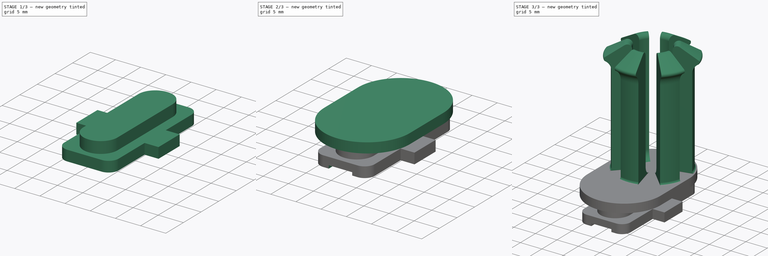
[diagram: build sequence overview — one tinted view per stage of 3, left to right]
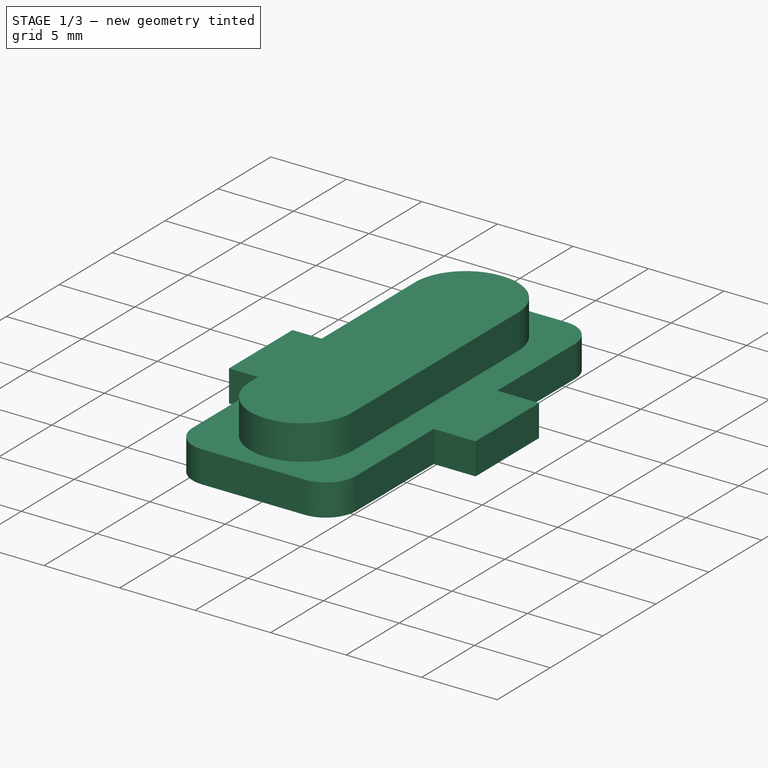
[diagram: stage 1 of 3 — iso view after this stage's code; geometry added in this stage tinted green]
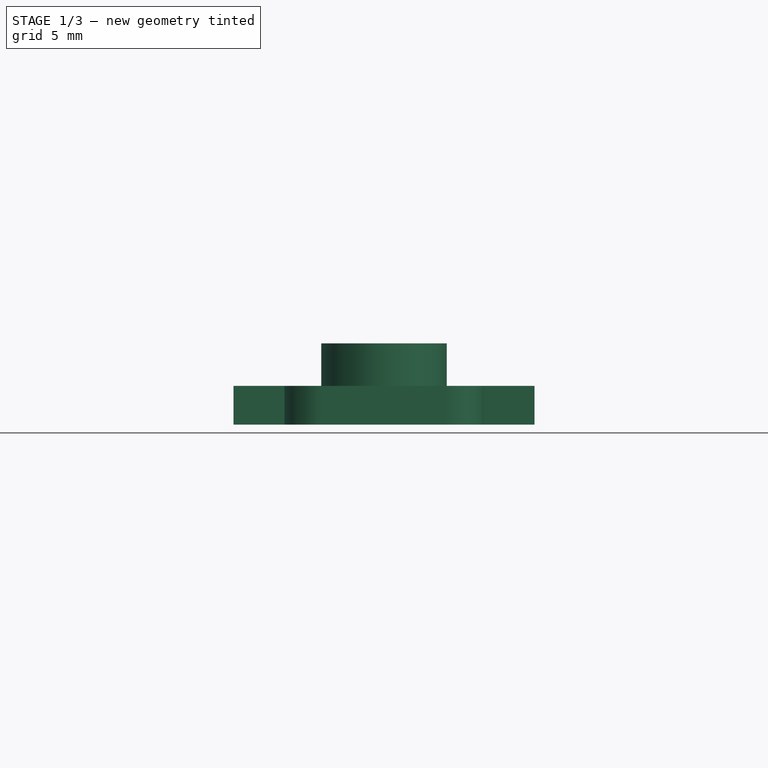
[diagram: stage 1 of 3 — front view after this stage's code; geometry added in this stage tinted green]
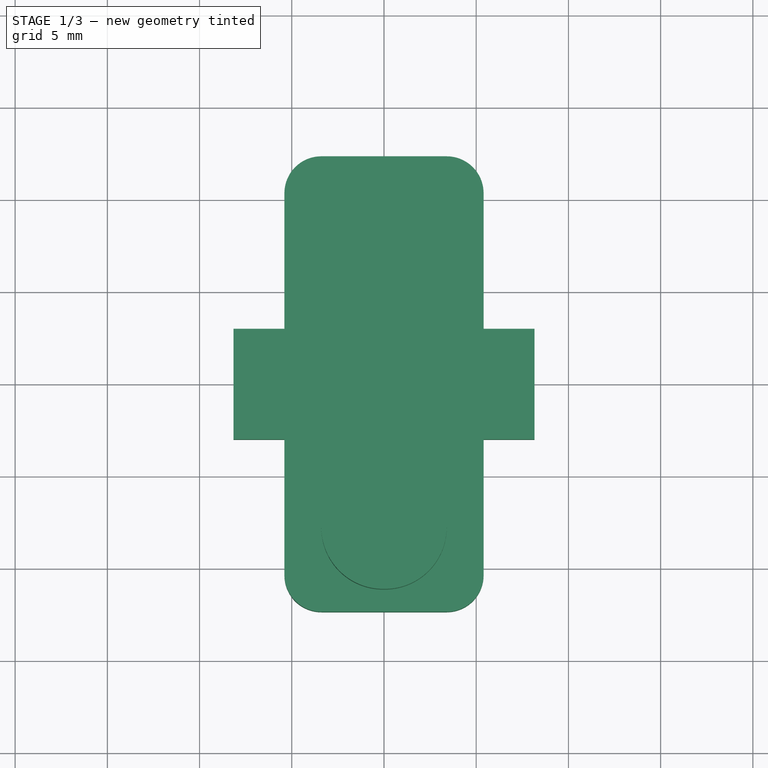
[diagram: stage 1 of 3 — top view after this stage's code; geometry added in this stage tinted green]
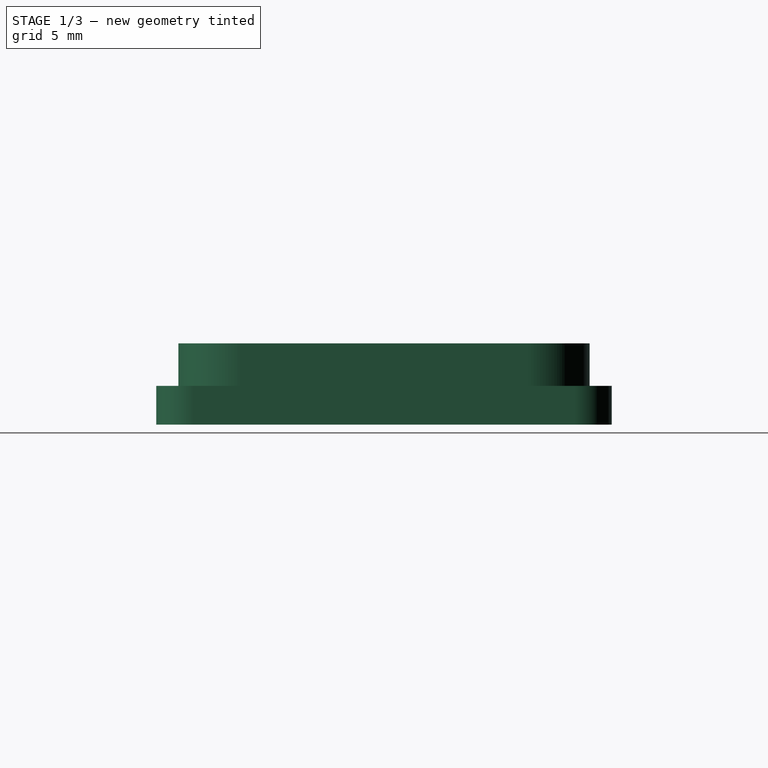
[diagram: stage 1 of 3 — right view after this stage's code; geometry added in this stage tinted green]
FCSTD DOCUMENT  (FreeCAD 1.0R39109 (Git))
Label: shower brush hook
License: All rights reserved
objects: Sketcher::SketchObject×5, PartDesign::Pad×3, PartDesign::Pocket×1, PartDesign::Line×1, PartDesign::Revolution×1, PartDesign::PolarPattern×1, PartDesign::Body×1
note: 29 computed .brp shape members not serialized (recipe doc carries the construction recipe); baked Part::Feature solids carry a one-line shape summary decoded from their .brp

FEATURE [Sketcher::SketchObject] Sketch
  ArcFitTolerance = 1e-06
  AttachmentSupport = -> [XY_Plane]
  FullyConstrained = true
  MakeInternals = false
  MapMode = 5
  sketch-geometry (28):
    g0: LineSegment [constr] StartX=-5.4 StartY=12.35 StartZ=0 EndX=-5.4 EndY=-12.35 EndZ=0
    g1: LineSegment [constr] StartX=-5.4 StartY=-12.35 StartZ=0 EndX=5.4 EndY=-12.35 EndZ=0
    g2: LineSegment [constr] StartX=5.4 StartY=-12.35 StartZ=0 EndX=5.4 EndY=12.35 EndZ=0
    g3: LineSegment [constr] StartX=5.4 StartY=12.35 StartZ=0 EndX=-5.4 EndY=12.35 EndZ=0
    g4: LineSegment [constr] StartX=-8.16 StartY=3 StartZ=0 EndX=-8.16 EndY=-3 EndZ=0
    g5: LineSegment [constr] StartX=-8.16 StartY=-3 StartZ=0 EndX=8.16 EndY=-3 EndZ=0
    g6: LineSegment [constr] StartX=8.16 StartY=-3 StartZ=0 EndX=8.16 EndY=3 EndZ=0
    g7: LineSegment [constr] StartX=8.16 StartY=3 StartZ=0 EndX=-8.16 EndY=3 EndZ=0
    g8: LineSegment StartX=-8.16 StartY=3 StartZ=0 EndX=-8.16 EndY=-3 EndZ=0
    g9: LineSegment StartX=-8.16 StartY=-3 StartZ=0 EndX=-5.4 EndY=-3 EndZ=0
    g10: LineSegment StartX=-5.4 StartY=-3 StartZ=0 EndX=-5.4 EndY=-10.35 EndZ=0
    g11: LineSegment StartX=-3.4 StartY=-12.35 StartZ=0 EndX=3.4 EndY=-12.35 EndZ=0
    g12: LineSegment StartX=5.4 StartY=-10.35 StartZ=0 EndX=5.4 EndY=-3 EndZ=0
    g13: LineSegment StartX=5.4 StartY=-3 StartZ=0 EndX=8.16 EndY=-3 EndZ=0
    g14: LineSegment StartX=8.16 StartY=-3 StartZ=0 EndX=8.16 EndY=3 EndZ=0
    g15: LineSegment StartX=8.16 StartY=3 StartZ=0 EndX=5.4 EndY=3 EndZ=0
    g16: LineSegment StartX=5.4 StartY=3 StartZ=0 EndX=5.4 EndY=10.35 EndZ=0
    g17: LineSegment StartX=3.4 StartY=12.35 StartZ=0 EndX=-3.4 EndY=12.35 EndZ=0
    g18: LineSegment StartX=-5.4 StartY=10.35 StartZ=0 EndX=-5.4 EndY=3 EndZ=0
    g19: LineSegment StartX=-5.4 StartY=3 StartZ=0 EndX=-8.16 EndY=3 EndZ=0
    g20: ArcOfCircle CenterX=-3.4 CenterY=10.35 CenterZ=0 NormalX=0 NormalY=0 NormalZ=1 AngleXU=0 Radius=2 StartAngle=1.5708 EndAngle=3.14159
    g21: GeomPoint [constr] X=-5.4 Y=12.35 Z=0
    g22: ArcOfCircle CenterX=3.4 CenterY=10.35 CenterZ=0 NormalX=0 NormalY=0 NormalZ=1 AngleXU=0 Radius=2 StartAngle=3e-16 EndAngle=1.5708
    g23: GeomPoint [constr] X=5.4 Y=12.35 Z=0
    g24: ArcOfCircle CenterX=-3.4 CenterY=-10.35 CenterZ=0 NormalX=0 NormalY=0 NormalZ=1 AngleXU=0 Radius=2 StartAngle=3.14159 EndAngle=4.71239
    g25: GeomPoint [constr] X=-5.4 Y=-12.35 Z=0
    g26: ArcOfCircle CenterX=3.4 CenterY=-10.35 CenterZ=0 NormalX=0 NormalY=0 NormalZ=1 AngleXU=0 Radius=2 StartAngle=4.71239 EndAngle=6.28319
    g27: GeomPoint [constr] X=5.4 Y=-12.35 Z=0
  constraints (64):
    c: Coincident(g0,g1)
    c: Coincident(g1,g2)
    c: Coincident(g2,g3)
    c: Coincident(g3,g0)
    c: Vertical(g0)
    c: Horizontal(g1)
    c: DistanceY(g2,g2) = 24.7
    c: Symmetric(g2,g1,g-1)
    c: Symmetric(g0,g2,g-2)
    c: DistanceX(g3,g3) = 10.8
    c: Coincident(g4,g5)
    c: Coincident(g5,g6)
    c: Coincident(g6,g7)
    c: Coincident(g7,g4)
    c: Vertical(g4)
    c: Horizontal(g5)
    c: Symmetric(g4,g6,g-2)
    c: Symmetric(g5,g6,g-1)
    c: Distance(g5,g5) = 16.32
    c: DistanceY(g6,g6) = 6
    c: Coincident(g8,g9)
    c: Coincident(g9,g10)
    c: Coincident(g12,g13)
    c: Coincident(g13,g14)
    c: Coincident(g14,g15)
    c: Coincident(g15,g16)
    c: Coincident(g18,g19)
    c: Coincident(g19,g8)
    c: Coincident(g8,g4)
    c: PointOnObject(g18,g0)
    c: PointOnObject(g18,g7)
    c: Coincident(g21,g0)
    c: Coincident(g23,g2)
    c: PointOnObject(g15,g2)
    c: PointOnObject(g15,g7)
    c: Coincident(g14,g6)
    c: Coincident(g13,g5)
    c: PointOnObject(g12,g5)
    c: PointOnObject(g12,g2)
    c: Coincident(g27,g1)
    c: Coincident(g25,g0)
    c: PointOnObject(g9,g0)
    c: PointOnObject(g9,g5)
    c: Coincident(g8,g4)
    c: PointOnObject(g21,g17)
    c: PointOnObject(g21,g18)
    c: Tangent(g17,g20) = -1.5708
    c: Tangent(g18,g20) = -1.5708
    c: PointOnObject(g23,g17)
    c: PointOnObject(g23,g16)
    c: Tangent(g17,g22) = -1.5708
    c: Tangent(g16,g22) = -1.5708
    c: PointOnObject(g25,g10)
    c: PointOnObject(g25,g11)
    c: Tangent(g10,g24) = -1.5708
    c: Tangent(g11,g24) = -1.5708
    c: PointOnObject(g27,g11)
    c: PointOnObject(g27,g12)
    c: Tangent(g11,g26) = -1.5708
    c: Tangent(g12,g26) = -1.5708
    c: Equal(g20,g22)
    c: Equal(g22,g24)
    c: Equal(g24,g26)
    c: Radius(g20) = 2
FEATURE [PartDesign::Pad] Pad
  Direction = (0,0,1)
  Length = 2.1
  Length2 = 10
  Profile = -> Sketch
  ReferenceAxis = -> Sketch [N_Axis]
  Suppressed = false
  Type = 0
FEATURE [Sketcher::SketchObject] Sketch001
  ArcFitTolerance = 1e-06
  AttachmentSupport = -> [Pad]
  FullyConstrained = true
  MakeInternals = false
  MapMode = 5
  Placement = pos=(0,0,2.1) rot=(0,0,1;0rad)
  sketch-geometry (12):
    g0: LineSegment StartX=-3.4 StartY=7.8 StartZ=0 EndX=-3.4 EndY=-7.8 EndZ=0
    g1: LineSegment StartX=-0.05 StartY=-11.15 StartZ=0 EndX=0.05 EndY=-11.15 EndZ=0
    g2: LineSegment StartX=3.4 StartY=-7.8 StartZ=0 EndX=3.4 EndY=7.8 EndZ=0
    g3: LineSegment StartX=0.05 StartY=11.15 StartZ=0 EndX=-0.05 EndY=11.15 EndZ=0
    g4: ArcOfCircle CenterX=0.05 CenterY=7.8 CenterZ=0 NormalX=0 NormalY=0 NormalZ=1 AngleXU=0 Radius=3.35 StartAngle=0 EndAngle=1.5708
    g5: GeomPoint [constr] X=3.4 Y=11.15 Z=0
    g6: ArcOfCircle CenterX=-0.05 CenterY=7.8 CenterZ=0 NormalX=0 NormalY=0 NormalZ=1 AngleXU=0 Radius=3.35 StartAngle=1.5708 EndAngle=3.14159
    g7: GeomPoint [constr] X=-3.4 Y=11.15 Z=0
    g8: ArcOfCircle CenterX=-0.05 CenterY=-7.8 CenterZ=0 NormalX=0 NormalY=0 NormalZ=1 AngleXU=0 Radius=3.35 StartAngle=3.14159 EndAngle=4.71239
    g9: GeomPoint [constr] X=-3.4 Y=-11.15 Z=0
    g10: ArcOfCircle CenterX=0.05 CenterY=-7.8 CenterZ=0 NormalX=0 NormalY=0 NormalZ=1 AngleXU=0 Radius=3.35 StartAngle=4.71239 EndAngle=6.28319
    g11: GeomPoint [constr] X=3.4 Y=-11.15 Z=0
  constraints (26):
    c: Vertical(g0)
    c: Horizontal(g3)
    c: Symmetric(g11,g5,g-1)
    c: Symmetric(g11,g9,g-2)
    c: Distance(g9,g11) = 6.8
    c: DistanceY(g11,g5) = 22.3
    c: PointOnObject(g5,g3)
    c: PointOnObject(g5,g2)
    c: Tangent(g3,g4) = -1.5708
    c: Tangent(g2,g4) = -1.5708
    c: PointOnObject(g7,g3)
    c: PointOnObject(g7,g0)
    c: Tangent(g3,g6) = -1.5708
    c: Tangent(g0,g6) = -1.5708
    c: PointOnObject(g9,g0)
    c: PointOnObject(g9,g1)
    c: Tangent(g0,g8) = -1.5708
    c: Tangent(g1,g8) = -1.5708
    c: PointOnObject(g11,g2)
    c: PointOnObject(g11,g1)
    c: Tangent(g2,g10) = -1.5708
    c: Tangent(g1,g10) = -1.5708
    c: Equal(g6,g4)
    c: Equal(g4,g8)
    c: Equal(g8,g10)
    c: Distance(g3,g3) = 0.1
FEATURE [PartDesign::Pad] Pad001
  BaseFeature = -> Pad
  Direction = (0,0,1)
  Length = 2.3
  Length2 = 10
  Profile = -> Sketch001
  ReferenceAxis = -> Sketch001 [N_Axis]
  Suppressed = false
  Type = 0
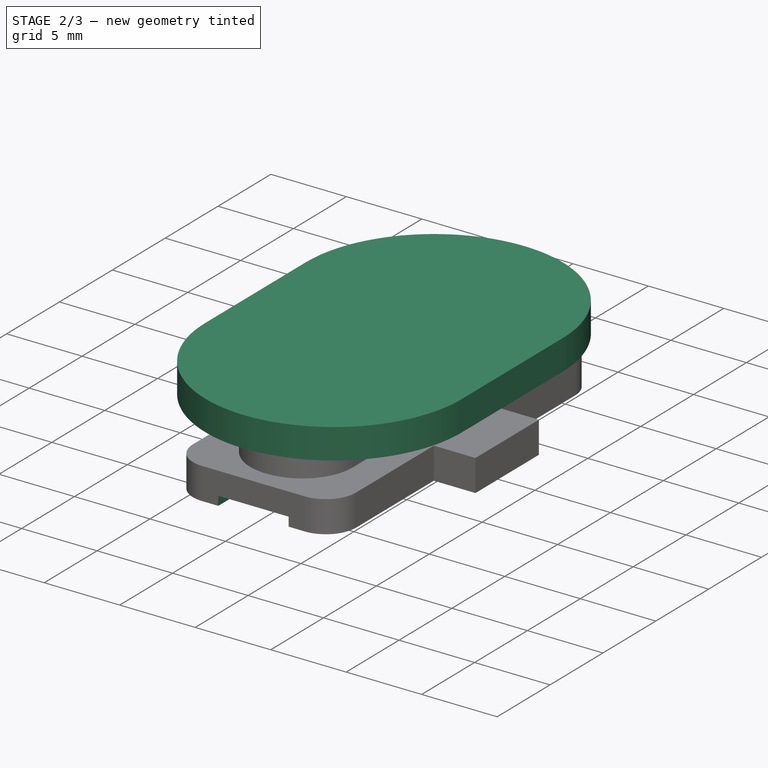
[diagram: stage 2 of 3 — iso view after this stage's code; geometry added in this stage tinted green]
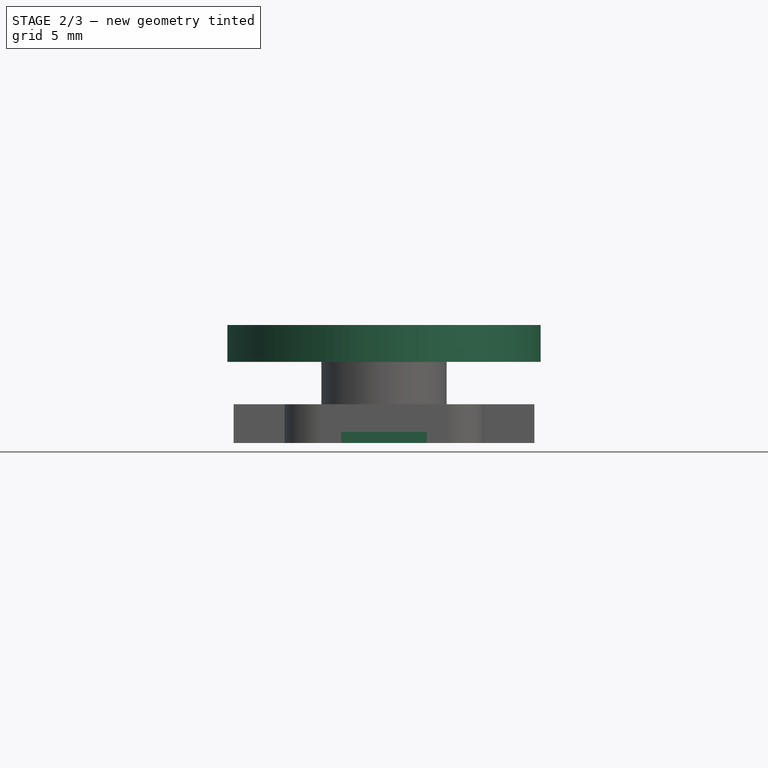
[diagram: stage 2 of 3 — front view after this stage's code; geometry added in this stage tinted green]
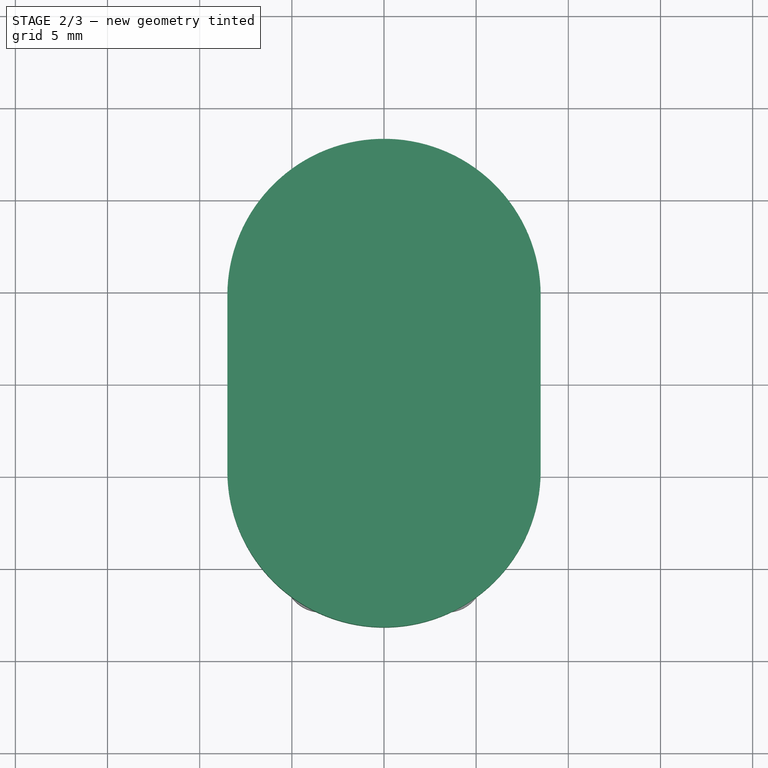
[diagram: stage 2 of 3 — top view after this stage's code; geometry added in this stage tinted green]
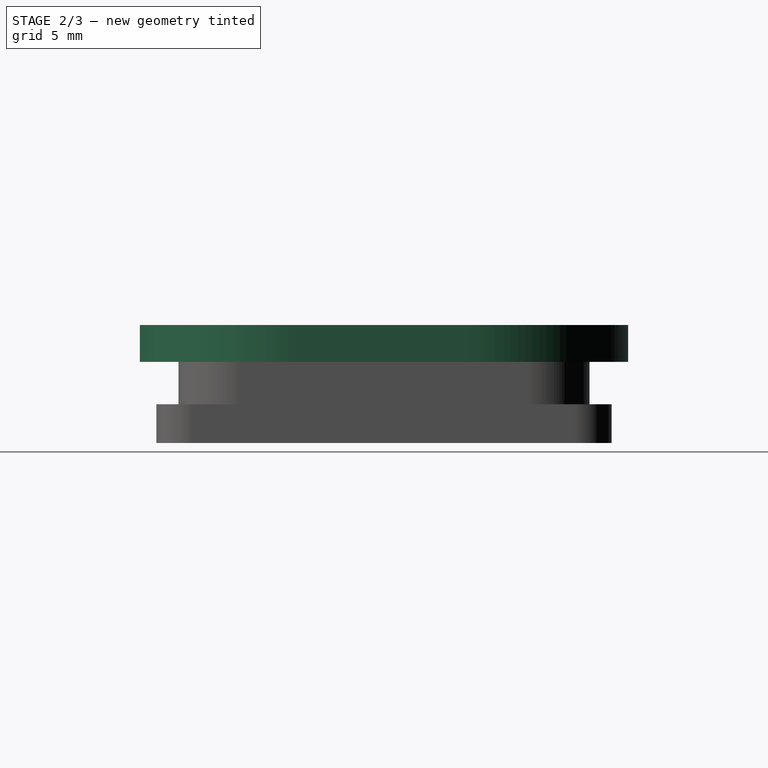
[diagram: stage 2 of 3 — right view after this stage's code; geometry added in this stage tinted green]
FEATURE [Sketcher::SketchObject] Sketch002
  ArcFitTolerance = 1e-06
  AttachmentSupport = -> [Pad001]
  ExternalGeometry = -> [Sketch]
  FullyConstrained = false
  MakeInternals = false
  MapMode = 5
  Placement = pos=(0,0,0) rot=(1,0,0;3.14159rad)
  sketch-geometry (8):
    g0: LineSegment StartX=-2.32943 StartY=12.35 StartZ=0 EndX=-2.32943 EndY=11 EndZ=0
    g1: LineSegment StartX=-2.32943 StartY=11 StartZ=0 EndX=2.32943 EndY=11 EndZ=0
    g2: LineSegment StartX=2.32943 StartY=11 StartZ=0 EndX=2.32943 EndY=12.35 EndZ=0
    g3: LineSegment StartX=2.32943 StartY=12.35 StartZ=0 EndX=-2.32943 EndY=12.35 EndZ=0
    g4: LineSegment StartX=-2.32943 StartY=-11 StartZ=0 EndX=-2.32943 EndY=-12.35 EndZ=0
    g5: LineSegment StartX=-2.32943 StartY=-12.35 StartZ=0 EndX=2.32943 EndY=-12.35 EndZ=0
    g6: LineSegment StartX=2.32943 StartY=-12.35 StartZ=0 EndX=2.32943 EndY=-11 EndZ=0
    g7: LineSegment StartX=2.32943 StartY=-11 StartZ=0 EndX=-2.32943 EndY=-11 EndZ=0
  constraints (21):
    c: Coincident(g0,g1)
    c: Coincident(g1,g2)
    c: Coincident(g2,g3)
    c: Coincident(g3,g0)
    c: Vertical(g0)
    c: Vertical(g2)
    c: PointOnObject(g0,g-3)
    c: PointOnObject(g2,g-3)
    c: Symmetric(g0,g1,g-2)
    c: Coincident(g4,g5)
    c: Coincident(g5,g6)
    c: Coincident(g6,g7)
    c: Coincident(g7,g4)
    c: Vertical(g4)
    c: Vertical(g6)
    c: Symmetric(g4,g6,g-2)
    c: PointOnObject(g4,g-4)
    c: PointOnObject(g5,g-4)
    c: Equal(g1,g7)
    c: Equal(g0,g4)
    c: DistanceY(g6,g1) = 22
FEATURE [PartDesign::Pocket] Pocket
  BaseFeature = -> Pad001
  Direction = (0,0,1)
  Length = 0.6
  Length2 = 5
  Profile = -> Sketch002
  ReferenceAxis = -> Sketch002 [N_Axis]
  Suppressed = false
  Type = 0
FEATURE [Sketcher::SketchObject] Sketch003
  ArcFitTolerance = 1e-06
  AttachmentSupport = -> [Pocket]
  FullyConstrained = true
  MakeInternals = false
  MapMode = 5
  Placement = pos=(0,0,4.4) rot=(0,0,1;0rad)
  sketch-geometry (6):
    g0: ArcOfCircle CenterX=0 CenterY=4.75 CenterZ=0 NormalX=0 NormalY=0 NormalZ=1 AngleXU=0 Radius=8.5 StartAngle=2e-16 EndAngle=3.14159
    g1: ArcOfCircle CenterX=0 CenterY=-4.75 CenterZ=0 NormalX=0 NormalY=0 NormalZ=1 AngleXU=0 Radius=8.5 StartAngle=3.14159 EndAngle=6.28319
    g2: LineSegment StartX=8.5 StartY=4.75 StartZ=0 EndX=8.5 EndY=-4.75 EndZ=0
    g3: LineSegment StartX=-8.5 StartY=4.75 StartZ=0 EndX=-8.5 EndY=-4.75 EndZ=0
    g4: GeomPoint X=0 Y=13.25 Z=0
    g5: GeomPoint X=0 Y=-13.25 Z=0
  constraints (13):
    c: Tangent(g0,g2) = 1.5708
    c: Tangent(g0,g3) = -1.5708
    c: Tangent(g1,g2) = 1.5708
    c: Tangent(g1,g3) = -1.5708
    c: Equal(g0,g1)
    c: PointOnObject(g0,g-2)
    c: Symmetric(g0,g1,g-1)
    c: Radius(g0) = 8.5
    c: PointOnObject(g4,g0)
    c: PointOnObject(g5,g1)
    c: PointOnObject(g4,g-2)
    c: PointOnObject(g5,g-2)
    c: DistanceY(g5,g4) = 26.5
FEATURE [PartDesign::Pad] Pad002
  BaseFeature = -> Pocket
  Direction = (0,0,1)
  Length = 2
  Length2 = 10
  Profile = -> Sketch003
  ReferenceAxis = -> Sketch003 [N_Axis]
  Suppressed = false
  Type = 0
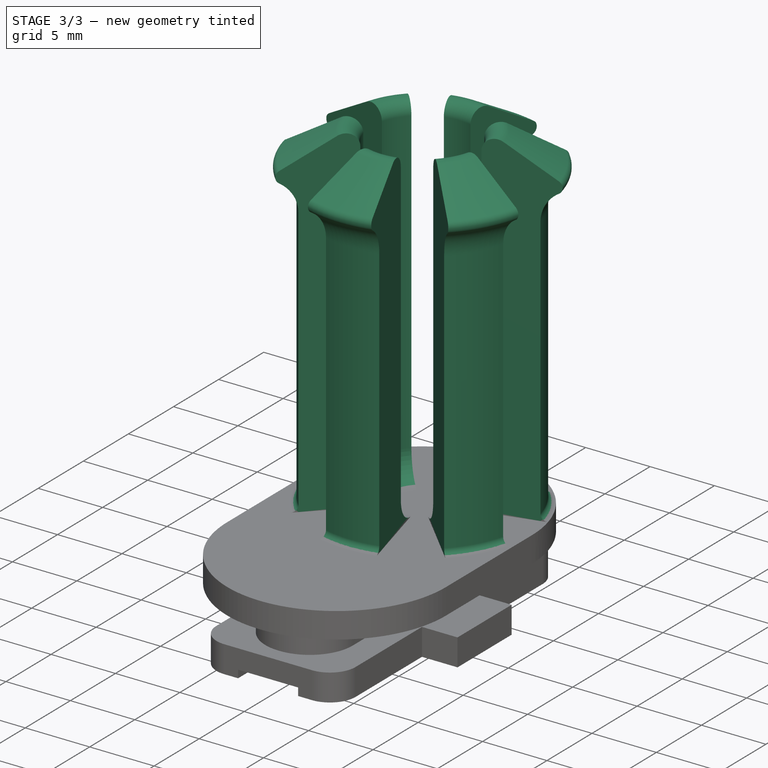
[diagram: stage 3 of 3 — iso view after this stage's code; geometry added in this stage tinted green]
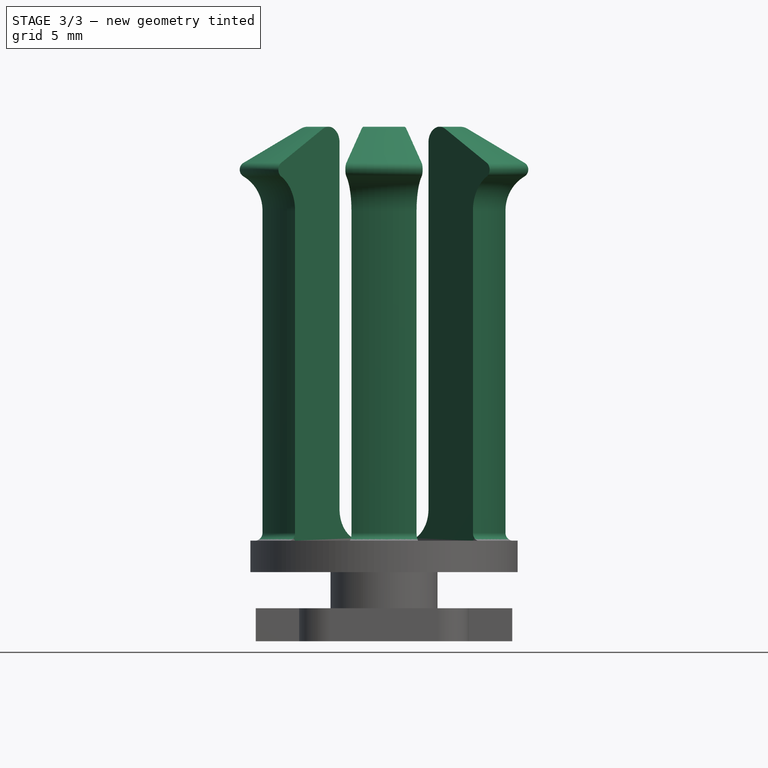
[diagram: stage 3 of 3 — front view after this stage's code; geometry added in this stage tinted green]
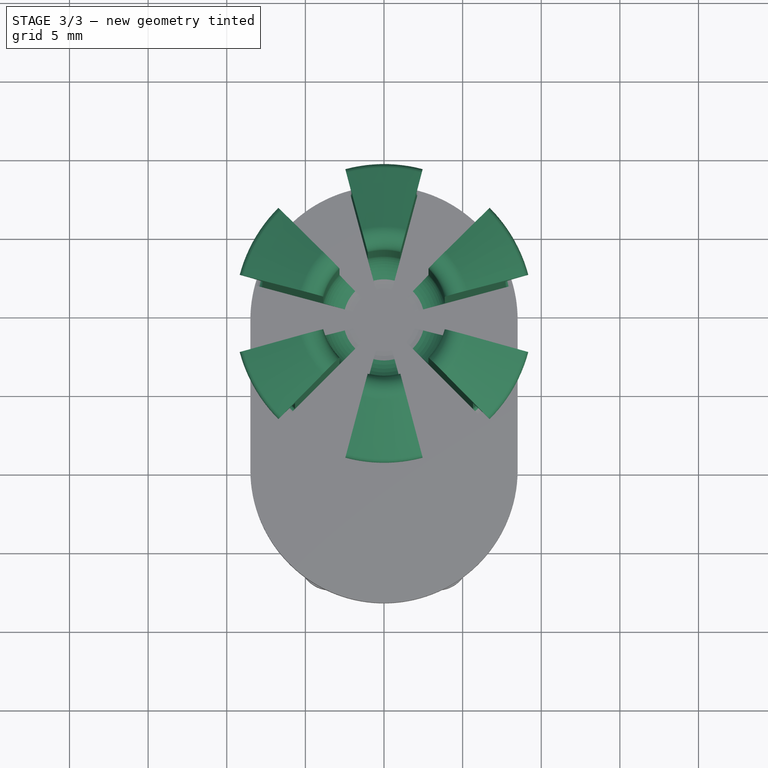
[diagram: stage 3 of 3 — top view after this stage's code; geometry added in this stage tinted green]
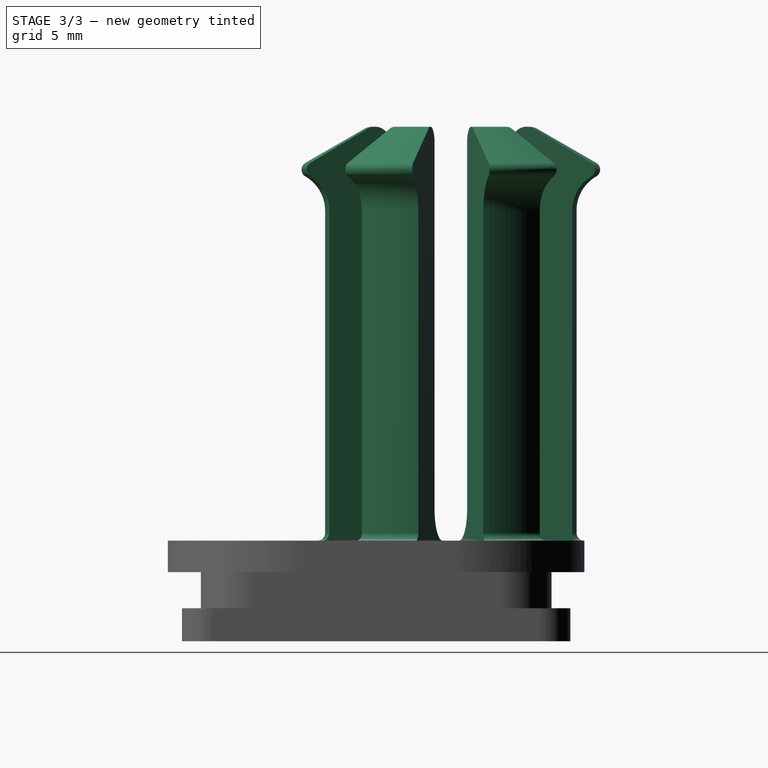
[diagram: stage 3 of 3 — right view after this stage's code; geometry added in this stage tinted green]
FEATURE [Sketcher::SketchObject] Sketch006
  ArcFitTolerance = 1e-06
  AttachmentSupport = -> [YZ_Plane]
  ExternalGeometry = -> [Pad002]
  FullyConstrained = true
  MakeInternals = false
  MapMode = 5
  Placement = pos=(0,0,0) rot=(0.57735,0.57735,0.57735;2.0944rad)
  sketch-geometry (11):
    g0: LineSegment StartX=8.75 StartY=31.7301 StartZ=0 EndX=8.75 EndY=8.4 EndZ=0
    g1: ArcOfCircle CenterX=6.75 CenterY=8.4 CenterZ=0 NormalX=0 NormalY=0 NormalZ=1 AngleXU=0 Radius=2 StartAngle=4.71239 EndAngle=6.28319
    g2: LineSegment StartX=12.75 StartY=6.4 StartZ=0 EndX=6.75 EndY=6.4 EndZ=0
    g3: ArcOfCircle CenterX=9.75 CenterY=31.7301 CenterZ=0 NormalX=0 NormalY=0 NormalZ=1 AngleXU=0 Radius=1 StartAngle=1.0472 EndAngle=3.14159
    g4: ArcOfCircle CenterX=15.25 CenterY=27.4 CenterZ=0 NormalX=0 NormalY=0 NormalZ=1 AngleXU=0 Radius=2.5 StartAngle=2.0944 EndAngle=3.14159
    g5: LineSegment StartX=10.25 StartY=32.5962 StartZ=0 EndX=14 EndY=30.4311 EndZ=0
    g6: ArcOfCircle CenterX=13.75 CenterY=29.9981 CenterZ=0 NormalX=0 NormalY=0 NormalZ=1 AngleXU=0 Radius=0.5 StartAngle=5.23599 EndAngle=7.33038
    g7: LineSegment [constr] StartX=12.75 StartY=6.4 StartZ=0 EndX=12.75 EndY=6.9 EndZ=0
    g8: LineSegment StartX=12.75 StartY=6.9 StartZ=0 EndX=12.75 EndY=27.4 EndZ=0
    g9: ArcOfCircle CenterX=13.25 CenterY=6.9 CenterZ=0 NormalX=0 NormalY=0 NormalZ=1 AngleXU=0 Radius=0.5 StartAngle=3.14159 EndAngle=4.71239
    g10: LineSegment StartX=12.75 StartY=6.4 StartZ=0 EndX=13.25 EndY=6.4 EndZ=0
  constraints (27):
    c: Vertical(g0)
    c: Radius(g1) = 2
    c: Tangent(g2,g1) = 1.5708
    c: Horizontal(g2)
    c: Tangent(g0,g1) = 1.5708
    c: Coincident(g2,g7)
    c: Tangent(g0,g3) = -1.5708
    c: Radius(g3) = 1
    c: DistanceY(g7,g8) = 21
    c: Tangent(g5,g3) = 1.5708
    c: Tangent(g6,g5) = 1.5708
    c: Angle(g4) = 1.0472
    c: Tangent(g6,g4) = 1.5708
    c: DistanceX(g-3,g7) = 8
    c: Coincident(g7,g8)
    c: Vertical(g7)
    c: Vertical(g8)
    c: Distance(g0,g7) = 4
    c: Tangent(g9,g-3) = 1.5708
    c: Tangent(g9,g7) = 1.5708
    c: Coincident(g10,g2)
    c: Tangent(g10,g9) = -1.5708
    c: Tangent(g8,g4) = 1.5708
    c: Radius(g6) = 0.5
    c: Distance(g6,g8) = 1
    c: Angle(g3) = 2.0944
    c: DistanceY(g4,g6) = 2.59808
FEATURE [PartDesign::Line] DatumLine
  AttacherType = Attacher::AttachEngineLine
  AttachmentSupport = -> [Sketch003]
  Length = 20
  MapMode = 19
  Placement = pos=(0,4.75,4.4) rot=(0,0,1;0rad)
  ResizeMode = 0
FEATURE [PartDesign::Revolution] Revolution
  Angle = 30
  Angle2 = 60
  Axis = (0,0,1)
  Base = (0,4.75,4.4)
  BaseFeature = -> Pad002
  Midplane = true
  Profile = -> Sketch006
  ReferenceAxis = -> DatumLine
  Suppressed = false
  Type = 0
FEATURE [PartDesign::PolarPattern] PolarPattern
  Angle = 360
  Axis = -> DatumLine
  BaseFeature = -> Revolution
  Mode = 0
  Occurrences = 6
  Offset = 120
  Originals = -> [Revolution]
  Suppressed = false
  TransformMode = 0
FEATURE [PartDesign::Body] Body
  AllowCompound = true
  Group = -> [Sketch,Pad,Sketch001,Pad001,Sketch002,Pocket,Sketch003,Pad002,DatumLine,Sketch006,Revolution,PolarPattern]
  Origin = -> Origin
  Tip = -> PolarPattern
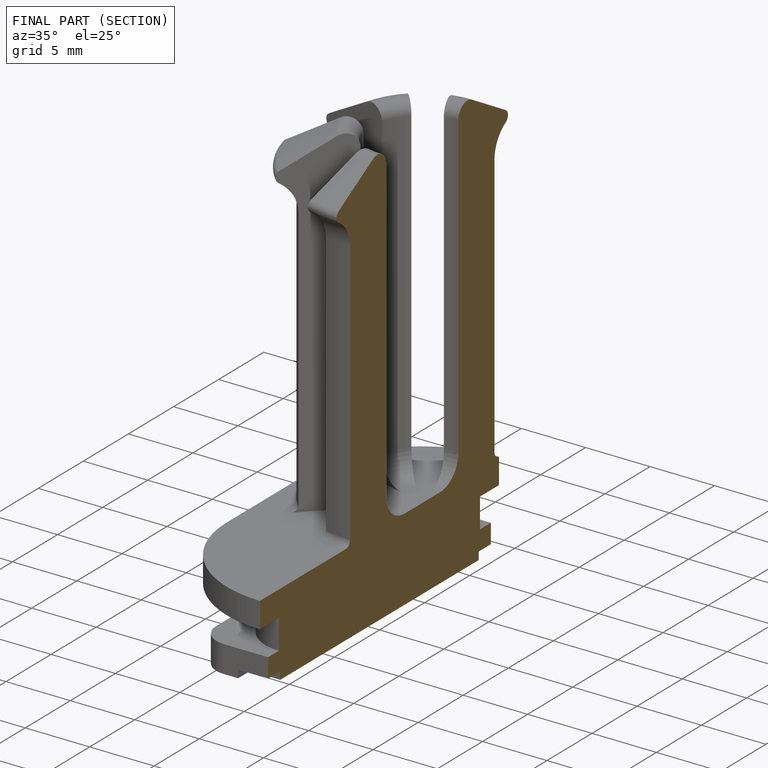
[diagram: finished part — half-section view (interior)]
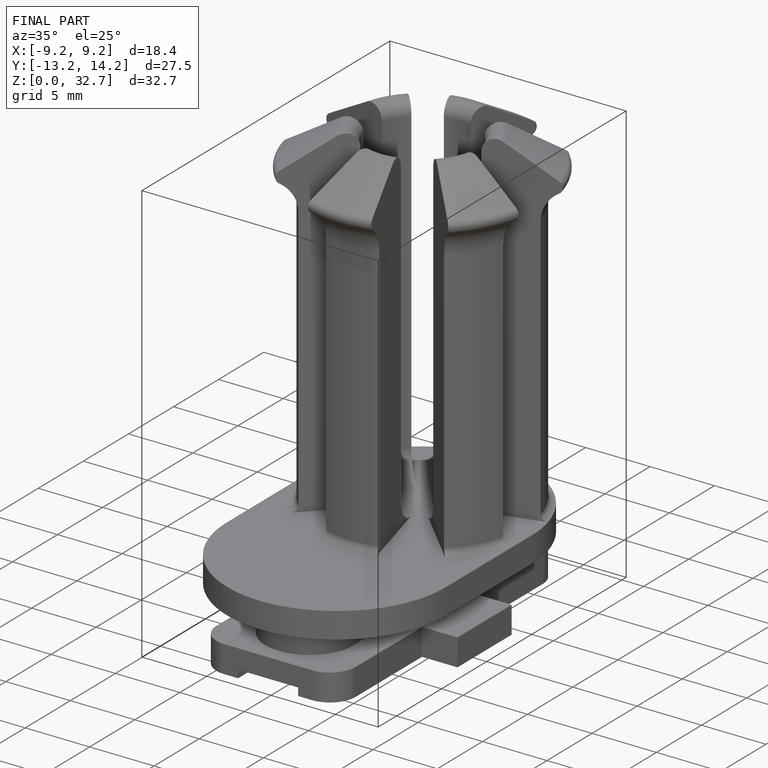
[diagram: finished part — iso view with bounding-box wireframe]
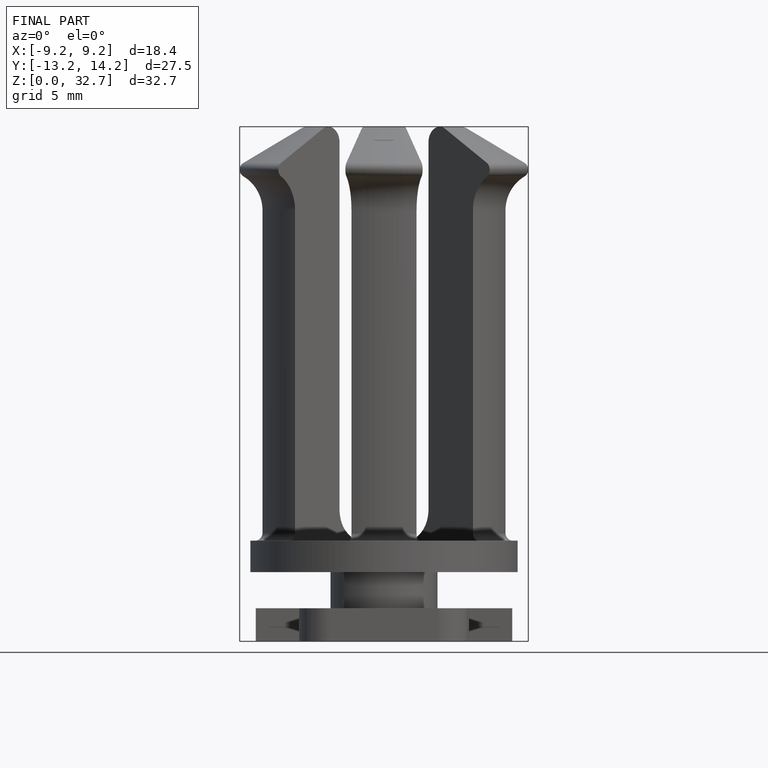
[diagram: finished part — front view with bounding-box wireframe]
